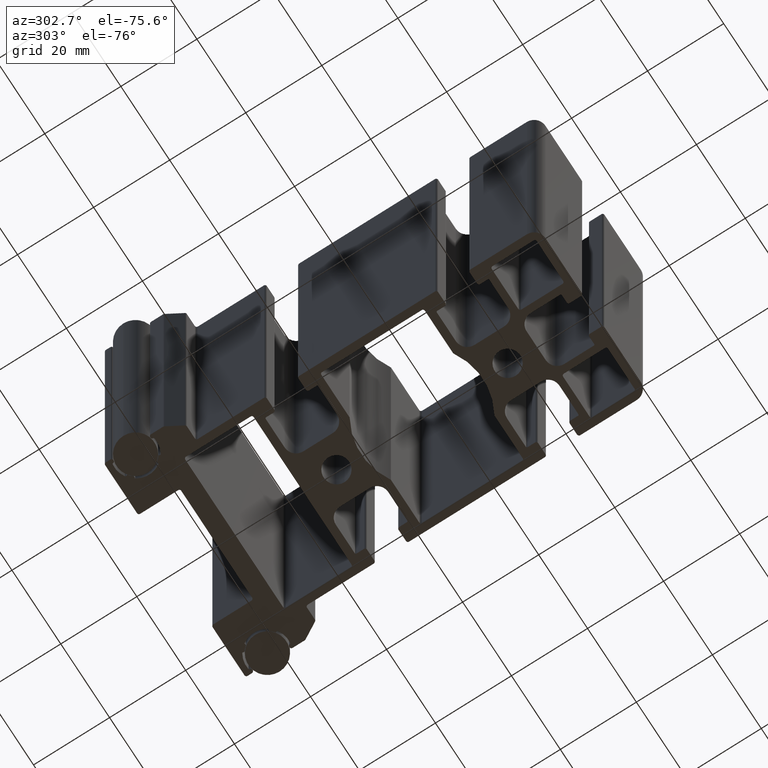
[diagram: clean part render]
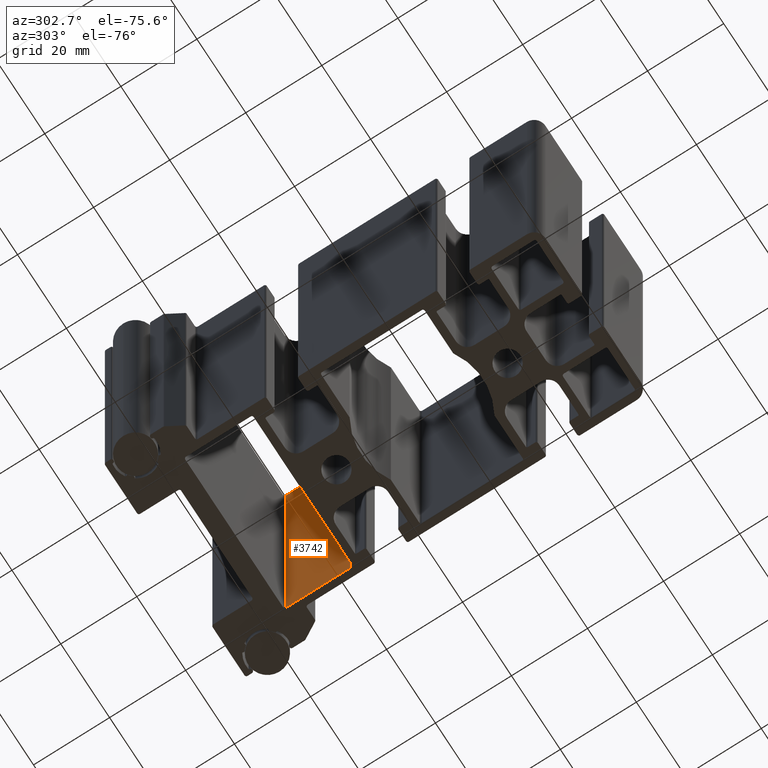
[diagram: same view with one face highlighted and labeled with its STEP entity id]
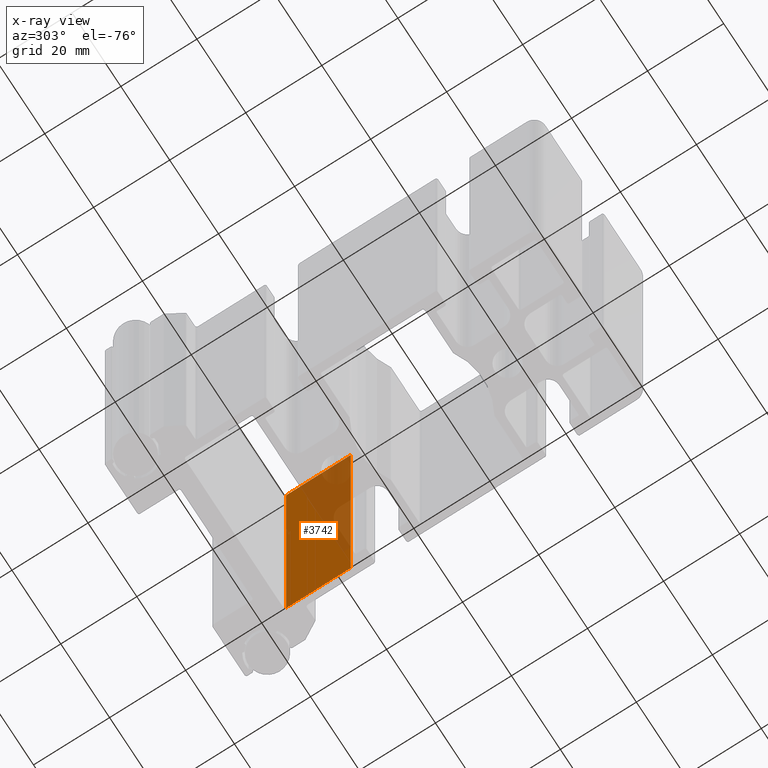
[diagram: x-ray of the same camera — body ghosted, the highlighted face saturated]
A machine part, auxiliary view. The second image highlights one B-rep face of the part: STEP entity #3742.
The next image is the same camera in x-ray: the body ghosted, the highlighted face saturated — about 37% of this face is hidden behind the body in this view.
In plain terms, the highlighted planar face has unit normal (1, 0, 0).
Its self-contained STEP definition (entity closure, byte-faithful):
#49=PLANE('',#4029);
#138=FACE_OUTER_BOUND('',#337,.T.);
#337=EDGE_LOOP('',(#2502,#2503,#2504,#2505));
#802=LINE('',#5777,#1145);
#803=LINE('',#5781,#1146);
#804=LINE('',#5783,#1147);
#805=LINE('',#5784,#1148);
#1145=VECTOR('',#4544,10.);
#1146=VECTOR('',#4549,10.);
#1147=VECTOR('',#4550,10.);
#1148=VECTOR('',#4551,10.);
#1493=VERTEX_POINT('',#5774);
#1494=VERTEX_POINT('',#5776);
#1495=VERTEX_POINT('',#5780);
#1496=VERTEX_POINT('',#5782);
#1899=EDGE_CURVE('',#1493,#1494,#802,.T.);
#1901=EDGE_CURVE('',#1495,#1493,#803,.T.);
#1902=EDGE_CURVE('',#1495,#1496,#804,.T.);
#1903=EDGE_CURVE('',#1494,#1496,#805,.T.);
#2502=ORIENTED_EDGE('',*,*,#1899,.F.);
#2503=ORIENTED_EDGE('',*,*,#1901,.F.);
#2504=ORIENTED_EDGE('',*,*,#1902,.T.);
#2505=ORIENTED_EDGE('',*,*,#1903,.F.);
#3742=ADVANCED_FACE('',(#138),#49,.F.);
#4029=AXIS2_PLACEMENT_3D('',#5779,#4547,#4548);
#4544=DIRECTION('',(0.,0.,1.));
#4547=DIRECTION('center_axis',(1.,2.61228946970628E-16,0.));
#4548=DIRECTION('ref_axis',(-2.61228946970628E-16,1.,0.));
#4549=DIRECTION('',(-2.61228946970628E-16,1.,0.));
#4550=DIRECTION('',(0.,0.,1.));
#4551=DIRECTION('',(2.61228946970628E-16,-1.,0.));
#5774=CARTESIAN_POINT('',(20.5000093671149,93.899994020605,-50.));
#5776=CARTESIAN_POINT('',(20.5000093671149,93.899994020605,50.));
#5777=CARTESIAN_POINT('',(20.5000093671149,93.899994020605,0.));
#5779=CARTESIAN_POINT('Origin',(20.5000093671149,76.8999940206052,0.));
#5780=CARTESIAN_POINT('',(20.5000093671149,76.8999940206052,-50.));
#5781=CARTESIAN_POINT('',(20.5000093671149,65.6789510543364,-50.));
#5782=CARTESIAN_POINT('',(20.5000093671149,76.8999940206052,50.));
#5783=CARTESIAN_POINT('',(20.5000093671149,76.8999940206052,0.));
#5784=CARTESIAN_POINT('',(20.5000093671149,65.6789510543364,50.));